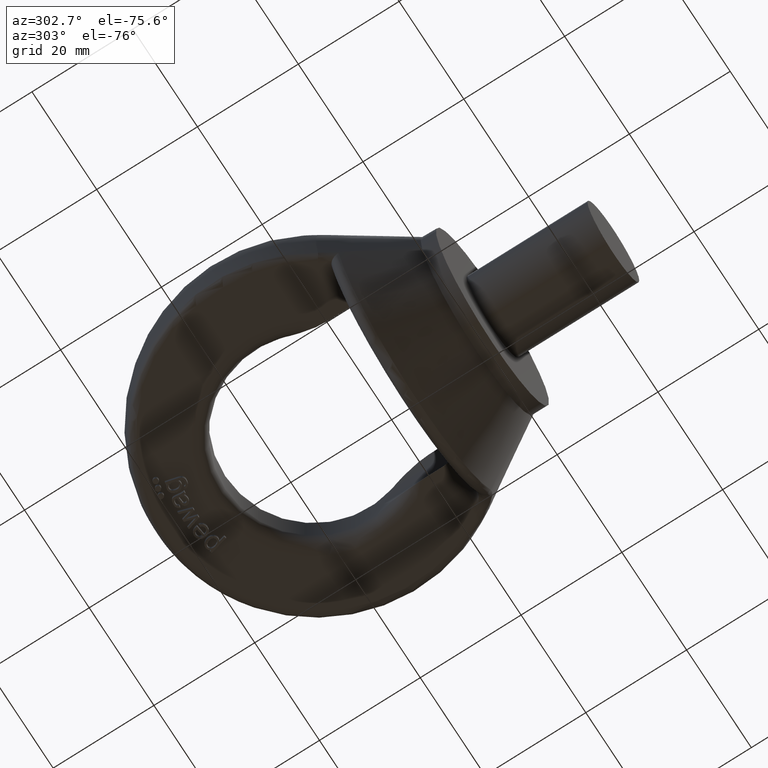
[diagram: clean part render]
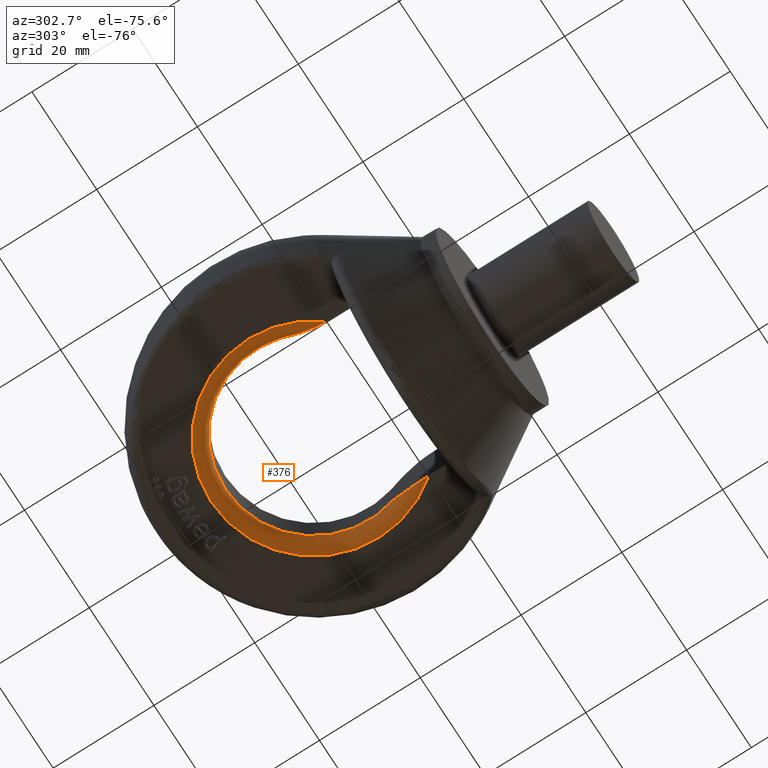
[diagram: same view with one face highlighted and labeled with its STEP entity id]
A machine part, auxiliary view. The second image highlights one B-rep face of the part: STEP entity #376.
In plain terms, the highlighted toroidal blend (fillet) surface has major radius 20.3 mm and minor (blend) radius 2.8 mm.
Its self-contained STEP definition (entity closure, byte-faithful):
#109=TOROIDAL_SURFACE('',#3143,20.3,2.8);
#211=FACE_OUTER_BOUND('',#773,.T.);
#376=ADVANCED_FACE('',(#211),#109,.T.);
#549=CIRCLE('',#3053,17.5);
#567=CIRCLE('',#3129,20.3);
#773=EDGE_LOOP('',(#1810,#1811,#1812,#1813));
#1810=ORIENTED_EDGE('',*,*,#2456,.F.);
#1811=ORIENTED_EDGE('',*,*,#2450,.F.);
#1812=ORIENTED_EDGE('',*,*,#2461,.F.);
#1813=ORIENTED_EDGE('',*,*,#2640,.F.);
#2166=VERTEX_POINT('',#4090);
#2168=VERTEX_POINT('',#4103);
#2173=VERTEX_POINT('',#4133);
#2177=VERTEX_POINT('',#4156);
#2450=EDGE_CURVE('',#2168,#2166,#549,.T.);
#2456=EDGE_CURVE('',#2166,#2173,#2821,.T.);
#2461=EDGE_CURVE('',#2177,#2168,#2823,.T.);
#2640=EDGE_CURVE('',#2173,#2177,#567,.T.);
#2821=B_SPLINE_CURVE_WITH_KNOTS('',3,(#4125,#4126,#4127,#4128,#4129,#4130,
#4131,#4132),.UNSPECIFIED.,.F.,.F.,(4,2,2,4),(0.,0.25,0.5,1.),
 .UNSPECIFIED.);
#2823=B_SPLINE_CURVE_WITH_KNOTS('',3,(#4157,#4158,#4159,#4160,#4161,#4162,
#4163,#4164),.UNSPECIFIED.,.F.,.F.,(4,2,2,4),(0.,0.5,0.75,1.),
 .UNSPECIFIED.);
#3053=AXIS2_PLACEMENT_3D('',#4104,#3255,#3256);
#3129=AXIS2_PLACEMENT_3D('',#5318,#3525,#3526);
#3143=AXIS2_PLACEMENT_3D('',#5536,#3564,#3565);
#3255=DIRECTION('',(2.34291072916505E-15,1.01192202765314E-16,-1.));
#3256=DIRECTION('',(-2.6412753523025E-31,1.,9.91270557701033E-17));
#3525=DIRECTION('',(-2.34291072916505E-15,-1.01192202765314E-16,1.));
#3526=DIRECTION('',(-3.03594868080747E-31,1.,8.54543584225028E-17));
#3564=DIRECTION('',(-2.34291072916505E-15,-1.01192202765314E-16,1.));
#3565=DIRECTION('',(-2.66795490131565E-31,1.,1.12644381556936E-16));
#4090=CARTESIAN_POINT('',(16.7238300379977,30.3460200950948,-4.19999999999997));
#4103=CARTESIAN_POINT('',(-16.7238300379977,30.3460200950948,-4.20000000000004));
#4104=CARTESIAN_POINT('',(9.84022506249322E-15,35.5,-4.20000000000001));
#4125=CARTESIAN_POINT('',(16.7238300379977,30.3460200950948,-4.19999999999997));
#4126=CARTESIAN_POINT('',(16.5873324185791,29.903107427629,-4.74351499708254));
#4127=CARTESIAN_POINT('',(16.4868203897948,29.2706656960946,-5.06141072263698));
#4128=CARTESIAN_POINT('',(16.283363032249,28.0416632590335,-5.68200786945645));
#4129=CARTESIAN_POINT('',(16.1875242681987,27.4089922954093,-5.94573266330239));
#4130=CARTESIAN_POINT('',(15.9217018717543,25.4713507235948,-6.63857299691742));
#4131=CARTESIAN_POINT('',(15.7583784425884,24.1078443630591,-6.99999999999997));
#4132=CARTESIAN_POINT('',(15.7583784425884,22.7029882839717,-6.99999999999997));
#4133=CARTESIAN_POINT('',(15.7583784425884,22.7029882839717,-6.99999999999997));
#4156=CARTESIAN_POINT('',(-15.7583784425883,22.7029882839717,-7.00000000000004));
#4157=CARTESIAN_POINT('',(-15.7583784425883,22.7029882839717,-7.00000000000004));
#4158=CARTESIAN_POINT('',(-15.7583784425883,24.1067525492222,-7.00000000000004));
#4159=CARTESIAN_POINT('',(-15.9201682235095,25.4593551178655,-6.64240600129247));
#4160=CARTESIAN_POINT('',(-16.1871955988044,27.4070022842676,-5.94667095429311));
#4161=CARTESIAN_POINT('',(-16.2839348235806,28.0453934796009,-5.68039539681402));
#4162=CARTESIAN_POINT('',(-16.4876001107326,29.2750975677448,-5.05889985978536));
#4163=CARTESIAN_POINT('',(-16.5892540076664,29.9093426729911,-4.73586349010686));
#4164=CARTESIAN_POINT('',(-16.7238300379977,30.3460200950948,-4.20000000000007));
#5318=CARTESIAN_POINT('',(1.64003751041553E-14,35.5,-7.));
#5536=CARTESIAN_POINT('',(9.84022506249322E-15,35.5,-4.20000000000001));